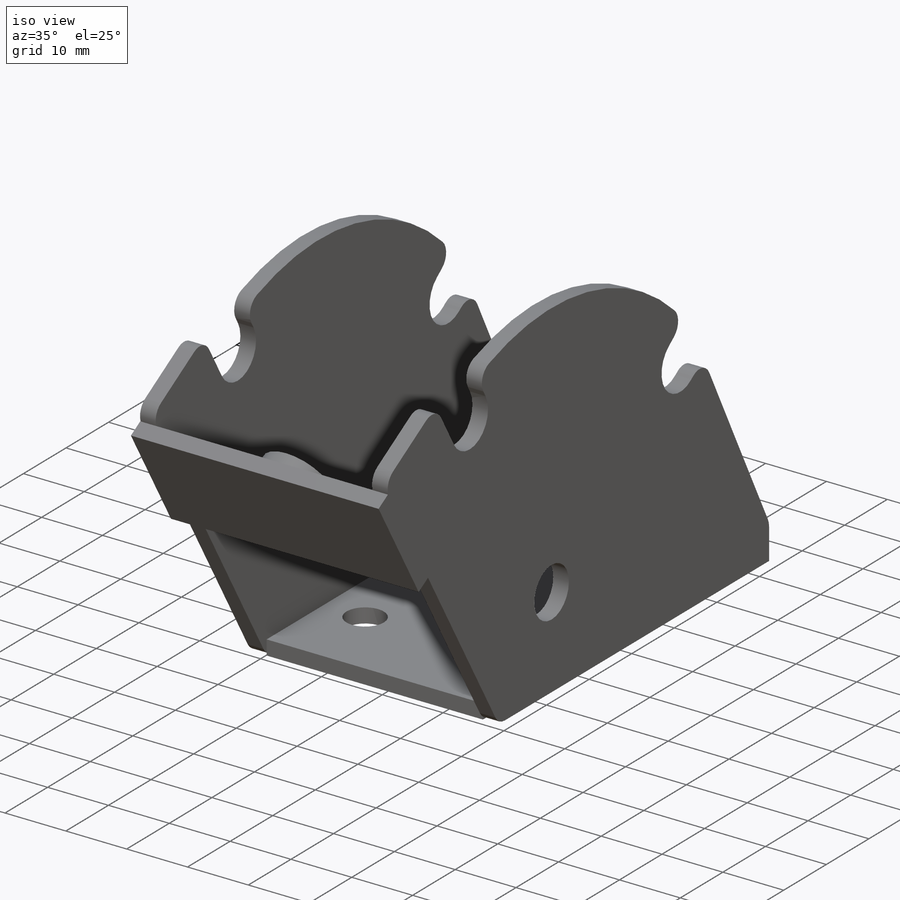
[diagram: iso view]
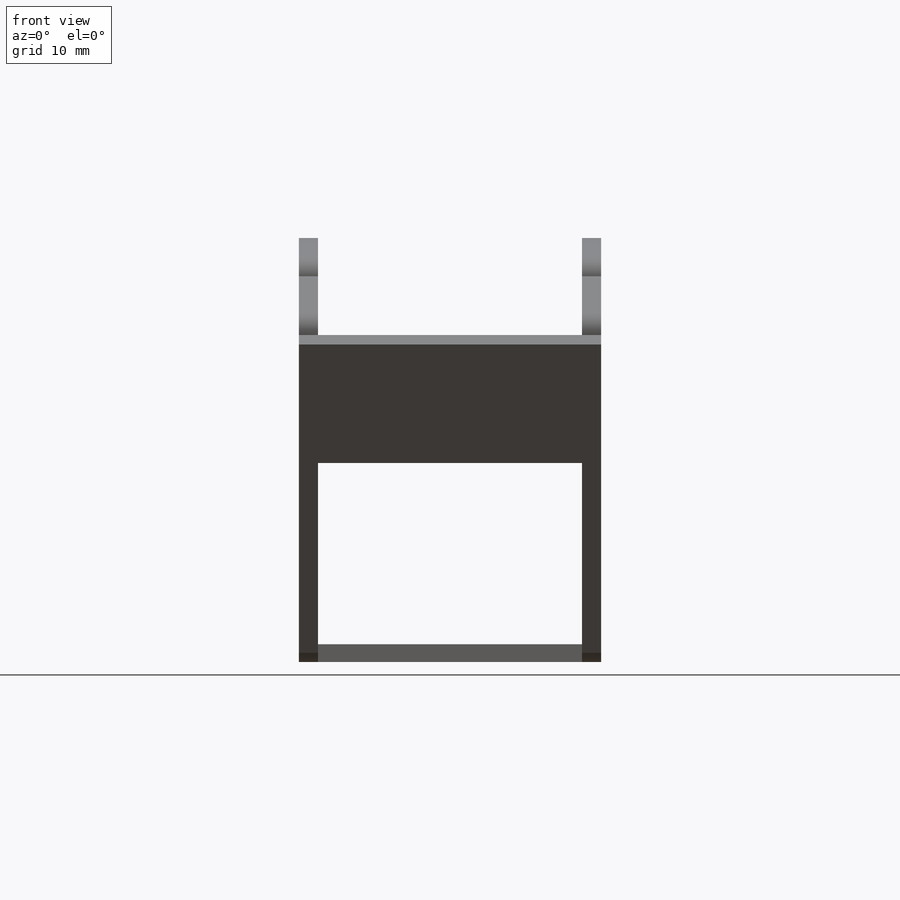
[diagram: front view]
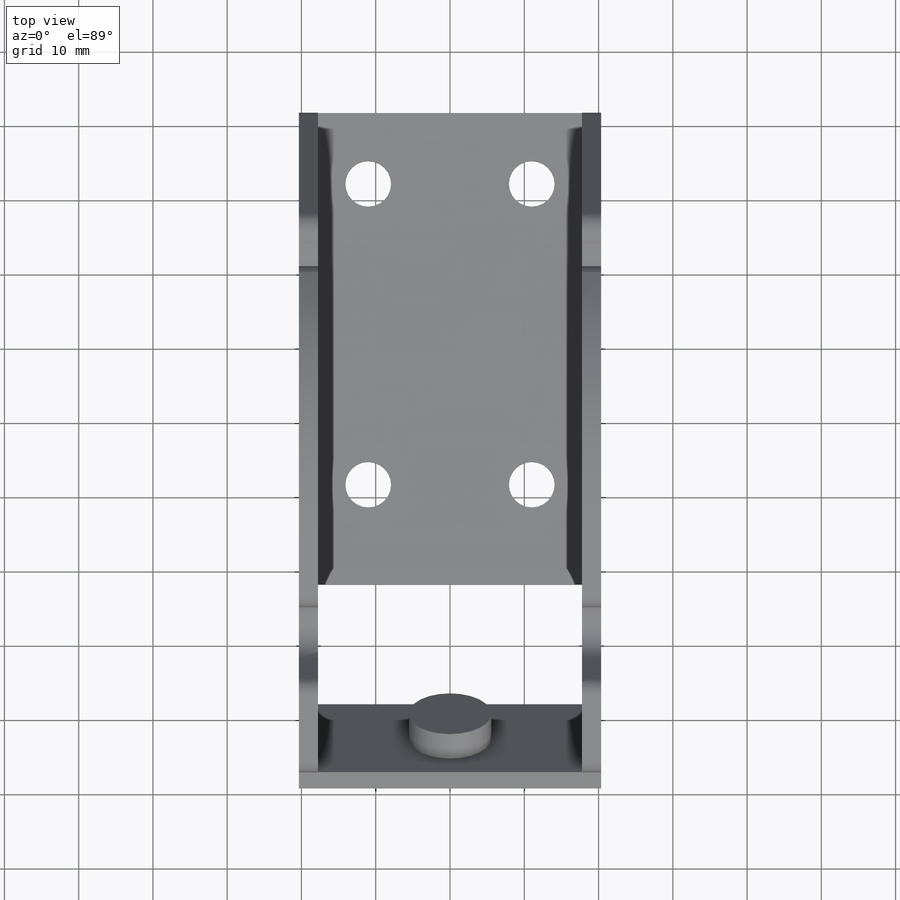
[diagram: top view]
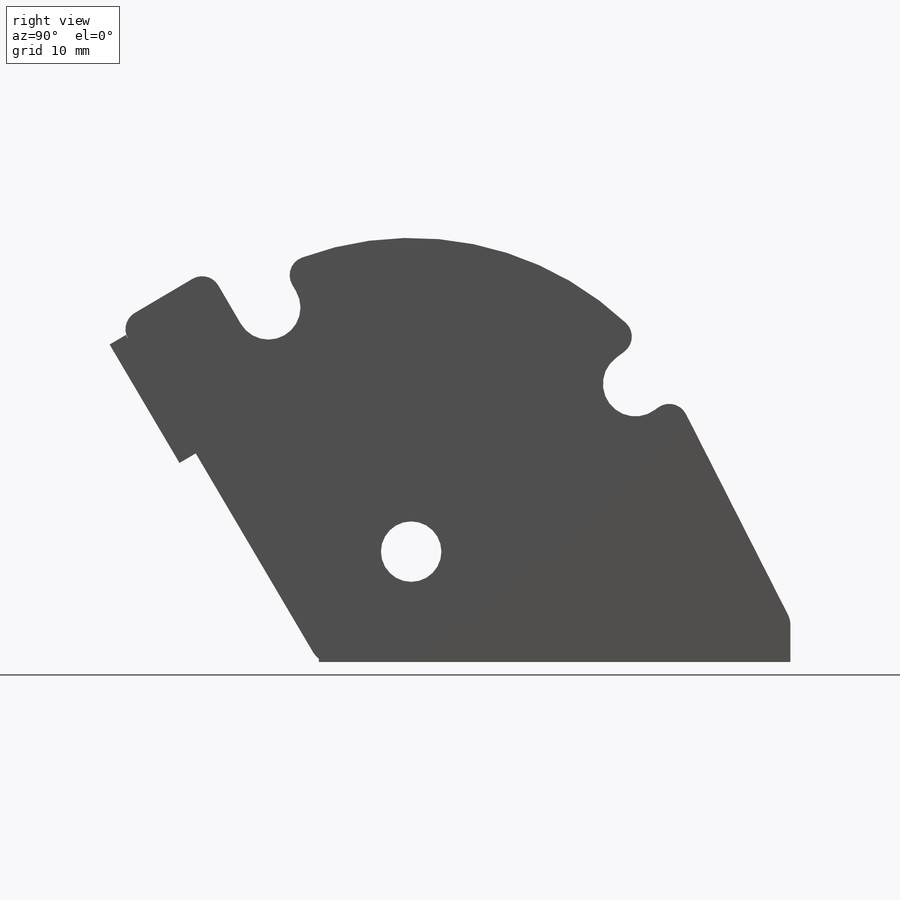
[diagram: right view]
SOLIDWORKS PART (.sldprt)
format: sldprt  version: not decoded by parser v0  size: 268,800 bytes
history: native  units: mm
features: sketch x4, extrude x4, material x1, plane x1, mirror x1 (+11 scaffold rows collapsed)
feature tree (22):
  scaffold x11  (default folders/planes/origin — collapsed)
  material  "Material <not specified>"
  sketch  "Sketch1"  dims[D3=6.1468mm D1=35.56mm D2=63.5mm D4=13.462mm D5=6.7691mm D6=9.525mm]
  extrude  "Boss-Extrude1"  Depth=2.4003mm
  sketch  "Sketch2"  dims[D2=8.1407mm D12=~42.24655mm D15=2.54mm D1=~14.86535mm D3=18.2626mm D4=53.086mm D5=45.72mm D6=14.1224mm D7=8.636mm D8=~38.08095mm D9=34.036mm D10=5.7277mm D11=36.068mm D13=8.7376mm D14=~37.69995mm]
  extrude  "Boss-Extrude2"  Depth=2.5781mm
  plane  "Plane1"
  mirror  "Mirror1"
  sketch  "Sketch3"  dims[D1=18.5166mm D2=30.5562mm]
  extrude  "Boss-Extrude3"  Depth=2.54mm
  sketch  "Sketch4"  dims[D1=11.1252mm]
  extrude  "Boss-Extrude4"  Depth=3.7846mm
decode coverage: 8 of 9 modeling features carry decoded parameters
note: ~ marks probable driven/reference dimensions
note: suppression state not decoded; provenance and decode notes live in map.json
